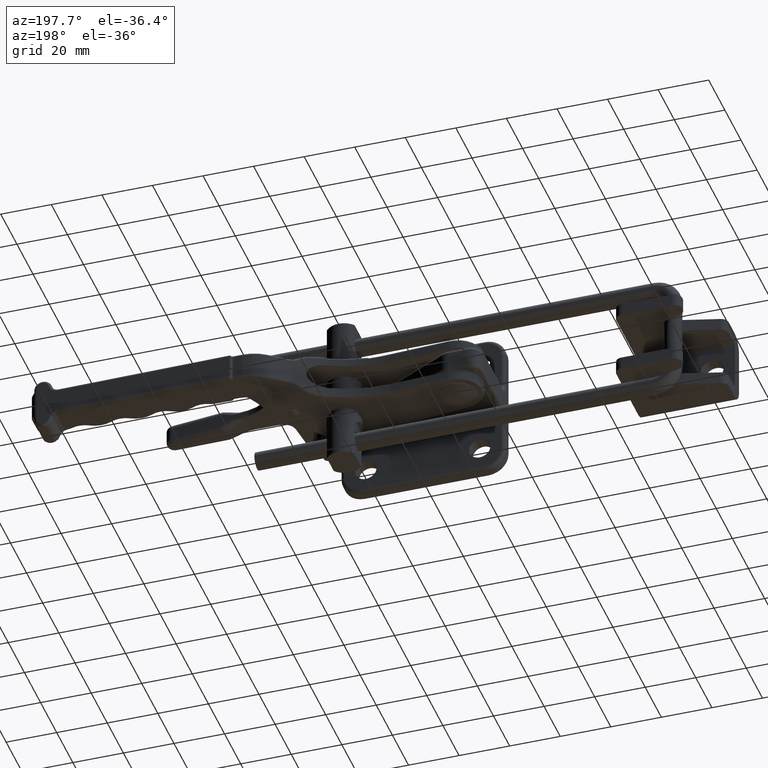
[diagram: clean part render]
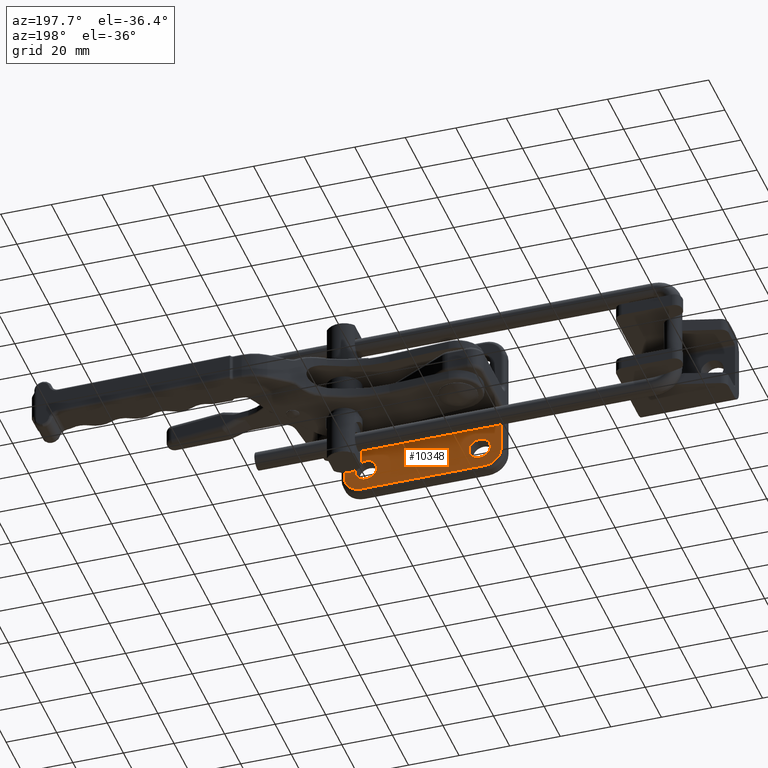
[diagram: same view with one face highlighted and labeled with its STEP entity id]
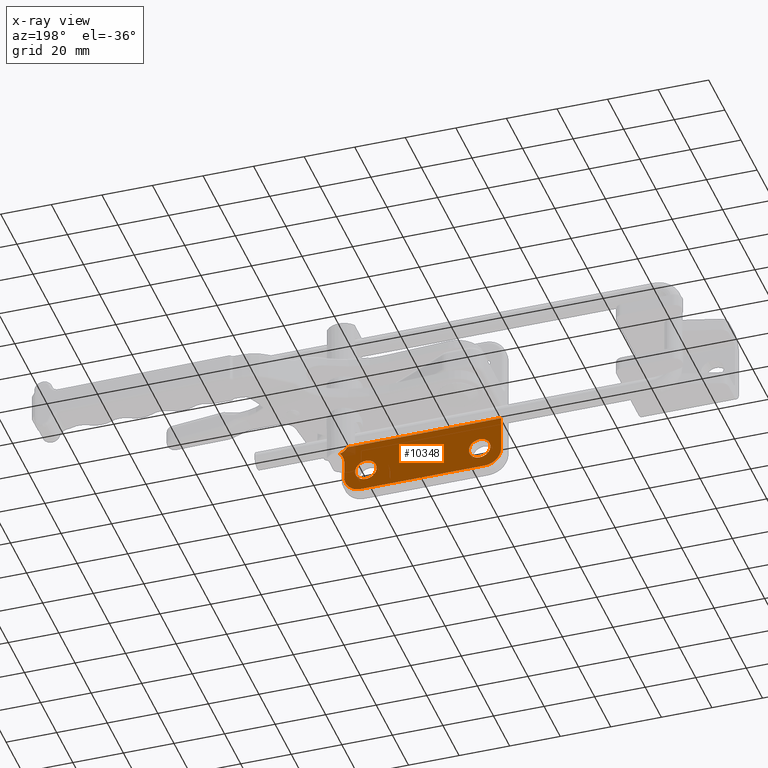
[diagram: x-ray of the same camera — body ghosted, the highlighted face saturated]
A machine part, auxiliary view. The second image highlights one B-rep face of the part: STEP entity #10348.
The next image is the same camera in x-ray: the body ghosted, the highlighted face saturated — about 2% of this face is hidden behind the body in this view.
In plain terms, the highlighted planar face has unit normal (0, 1, 0).
Its self-contained STEP definition (entity closure, byte-faithful):
#220=B_SPLINE_CURVE_WITH_KNOTS('',3,(#16790,#16791,#16792,#16793,#16794,
#16795,#16796,#16797),.UNSPECIFIED.,.F.,.F.,(4,1,1,1,1,4),(0.,0.2,0.4,0.6,
0.8,1.),.UNSPECIFIED.);
#577=FACE_BOUND('',#1759,.T.);
#578=FACE_BOUND('',#1760,.T.);
#678=PLANE('',#11244);
#1049=FACE_OUTER_BOUND('',#1758,.T.);
#1758=EDGE_LOOP('',(#7385,#7386,#7387,#7388,#7389,#7390,#7391,#7392));
#1759=EDGE_LOOP('',(#7393));
#1760=EDGE_LOOP('',(#7394));
#2548=LINE('',#16652,#3078);
#2549=LINE('',#16660,#3079);
#2550=LINE('',#16668,#3080);
#2552=LINE('',#16909,#3082);
#3078=VECTOR('',#13014,14.25);
#3079=VECTOR('',#13025,49.0000000000001);
#3080=VECTOR('',#13036,7.);
#3082=VECTOR('',#13060,60.9374040339998);
#3640=CIRCLE('',#11225,6.5);
#3643=CIRCLE('',#11230,6.5);
#3646=CIRCLE('',#11235,7.5);
#3652=CIRCLE('',#11245,4.25);
#3653=CIRCLE('',#11246,4.25);
#4407=VERTEX_POINT('',#16647);
#4408=VERTEX_POINT('',#16651);
#4409=VERTEX_POINT('',#16655);
#4410=VERTEX_POINT('',#16659);
#4411=VERTEX_POINT('',#16663);
#4412=VERTEX_POINT('',#16667);
#4413=VERTEX_POINT('',#16671);
#4416=VERTEX_POINT('',#16789);
#4417=VERTEX_POINT('',#16912);
#4418=VERTEX_POINT('',#16914);
#5489=EDGE_CURVE('',#4407,#4408,#2548,.T.);
#5491=EDGE_CURVE('',#4409,#4408,#3640,.T.);
#5493=EDGE_CURVE('',#4409,#4410,#2549,.T.);
#5495=EDGE_CURVE('',#4411,#4410,#3643,.T.);
#5497=EDGE_CURVE('',#4411,#4412,#2550,.T.);
#5499=EDGE_CURVE('',#4413,#4412,#3646,.T.);
#5507=EDGE_CURVE('',#4413,#4416,#220,.T.);
#5510=EDGE_CURVE('',#4416,#4407,#2552,.T.);
#5512=EDGE_CURVE('',#4417,#4417,#3652,.T.);
#5513=EDGE_CURVE('',#4418,#4418,#3653,.T.);
#7385=ORIENTED_EDGE('',*,*,#5507,.F.);
#7386=ORIENTED_EDGE('',*,*,#5499,.T.);
#7387=ORIENTED_EDGE('',*,*,#5497,.F.);
#7388=ORIENTED_EDGE('',*,*,#5495,.T.);
#7389=ORIENTED_EDGE('',*,*,#5493,.F.);
#7390=ORIENTED_EDGE('',*,*,#5491,.T.);
#7391=ORIENTED_EDGE('',*,*,#5489,.F.);
#7392=ORIENTED_EDGE('',*,*,#5510,.F.);
#7393=ORIENTED_EDGE('',*,*,#5512,.T.);
#7394=ORIENTED_EDGE('',*,*,#5513,.T.);
#10348=ADVANCED_FACE('',(#1049,#577,#578),#678,.T.);
#11225=AXIS2_PLACEMENT_3D('',#16656,#13019,#13020);
#11230=AXIS2_PLACEMENT_3D('',#16664,#13030,#13031);
#11235=AXIS2_PLACEMENT_3D('',#16672,#13041,#13042);
#11244=AXIS2_PLACEMENT_3D('',#16911,#13062,#13063);
#11245=AXIS2_PLACEMENT_3D('',#16913,#13064,#13065);
#11246=AXIS2_PLACEMENT_3D('',#16915,#13066,#13067);
#13014=DIRECTION('',(0.,0.,-1.));
#13019=DIRECTION('center_axis',(0.,1.,0.));
#13020=DIRECTION('ref_axis',(1.399222618112E-13,0.,-1.));
#13025=DIRECTION('',(1.,0.,0.));
#13030=DIRECTION('center_axis',(0.,1.,0.));
#13031=DIRECTION('ref_axis',(1.,0.,-1.53039973856E-14));
#13036=DIRECTION('',(0.,0.,1.));
#13041=DIRECTION('center_axis',(0.,-1.,0.));
#13042=DIRECTION('ref_axis',(-0.760811601989412,0.,0.648972808581611));
#13060=DIRECTION('',(-1.,-2.919715794498E-12,-1.624266813792E-12));
#13062=DIRECTION('center_axis',(0.,1.,0.));
#13063=DIRECTION('ref_axis',(0.,0.,1.));
#13064=DIRECTION('center_axis',(0.,-1.,0.));
#13065=DIRECTION('ref_axis',(0.,0.,1.));
#13066=DIRECTION('center_axis',(0.,-1.,0.));
#13067=DIRECTION('ref_axis',(0.,0.,1.));
#16647=CARTESIAN_POINT('',(1412.578671449,831.6022942942,-7.75));
#16651=CARTESIAN_POINT('',(1412.578671449,831.6022942942,-22.));
#16652=CARTESIAN_POINT('',(1412.578671449,831.6022942942,-7.75));
#16655=CARTESIAN_POINT('',(1419.078671449,831.6022942942,-28.5));
#16656=CARTESIAN_POINT('Origin',(1419.078671449,831.6022942942,-22.));
#16659=CARTESIAN_POINT('',(1468.078671449,831.6022942942,-28.5));
#16660=CARTESIAN_POINT('',(1419.078671449,831.6022942942,-28.5));
#16663=CARTESIAN_POINT('',(1474.578671449,831.6022942942,-22.));
#16664=CARTESIAN_POINT('Origin',(1468.078671449,831.6022942942,-22.));
#16667=CARTESIAN_POINT('',(1474.578671449,831.6022942942,-15.));
#16668=CARTESIAN_POINT('',(1474.578671449,831.6022942942,-22.));
#16671=CARTESIAN_POINT('',(1476.37258443402,831.6022943768,-10.1327039355546));
#16672=CARTESIAN_POINT('Origin',(1482.078671449,831.6022942942,-15.));
#16789=CARTESIAN_POINT('',(1473.516075483,831.6022942944,-7.749999999901));
#16790=CARTESIAN_POINT('Ctrl Pts',(1476.372584434,831.6022944594,-10.13270393551));
#16791=CARTESIAN_POINT('Ctrl Pts',(1476.143581393,831.6022944594,-10.0881518862));
#16792=CARTESIAN_POINT('Ctrl Pts',(1475.694350049,831.6022942176,-9.950768895601));
#16793=CARTESIAN_POINT('Ctrl Pts',(1475.025848559,831.6022943148,-9.596220363277));
#16794=CARTESIAN_POINT('Ctrl Pts',(1474.425628663,831.6022942887,-9.104109893625));
#16795=CARTESIAN_POINT('Ctrl Pts',(1473.914004329,831.6022942957,-8.498892228114));
#16796=CARTESIAN_POINT('Ctrl Pts',(1473.638185547,831.6022942944,-8.012979286622));
#16797=CARTESIAN_POINT('Ctrl Pts',(1473.516075483,831.6022942944,-7.749999999901));
#16909=CARTESIAN_POINT('',(1473.516075483,831.6022942944,-7.749999999901));
#16911=CARTESIAN_POINT('Origin',(1419.078671449,831.6022942942,0.));
#16912=CARTESIAN_POINT('',(1466.078671449,831.6022942942,-24.25));
#16913=CARTESIAN_POINT('Origin',(1466.078671449,831.6022942942,-20.));
#16914=CARTESIAN_POINT('',(1421.078671449,831.6022942942,-24.25));
#16915=CARTESIAN_POINT('Origin',(1421.078671449,831.6022942942,-20.));